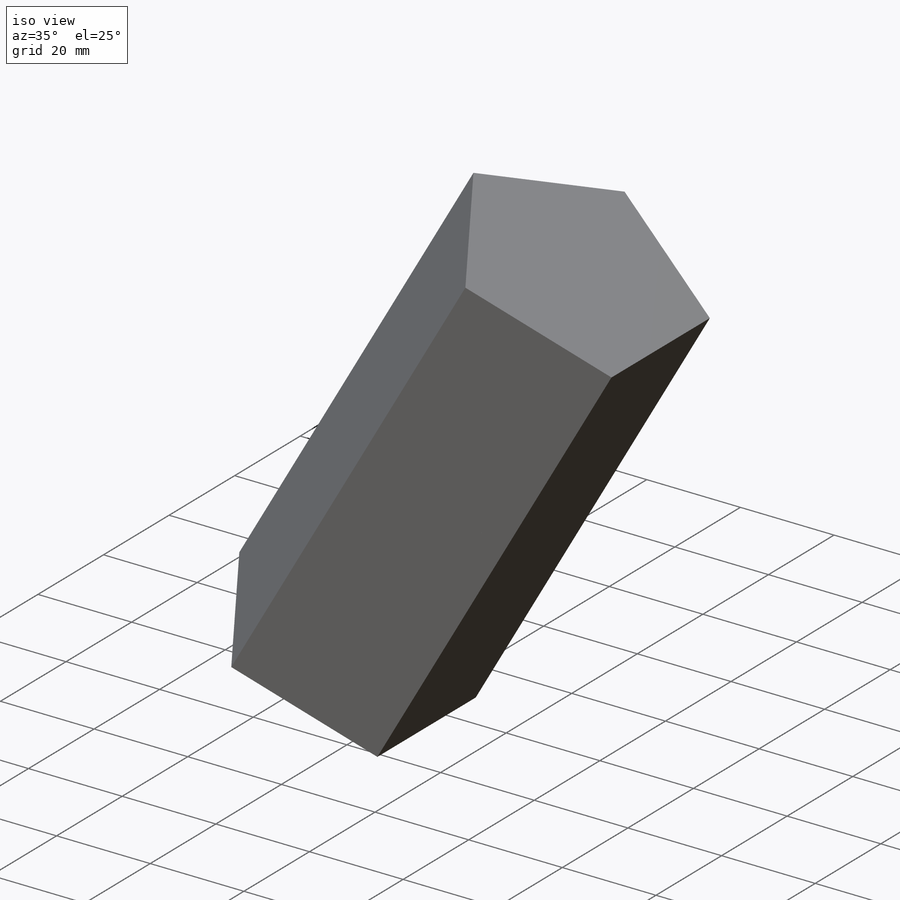
[diagram: iso view]
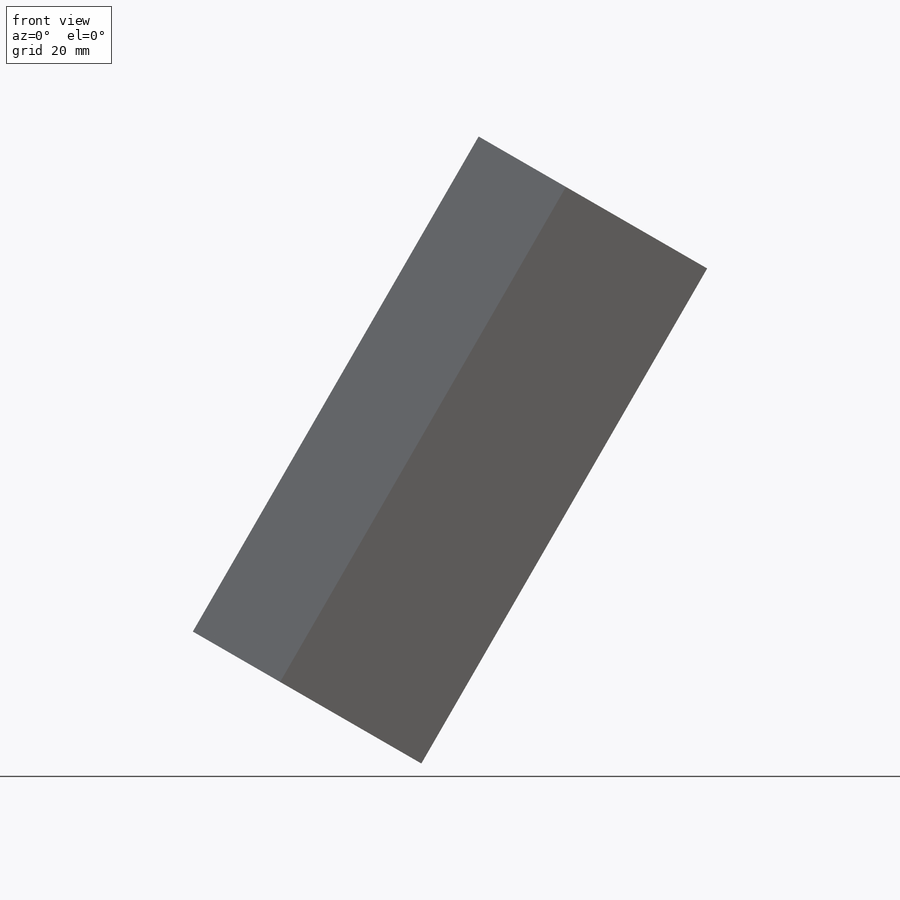
[diagram: front view]
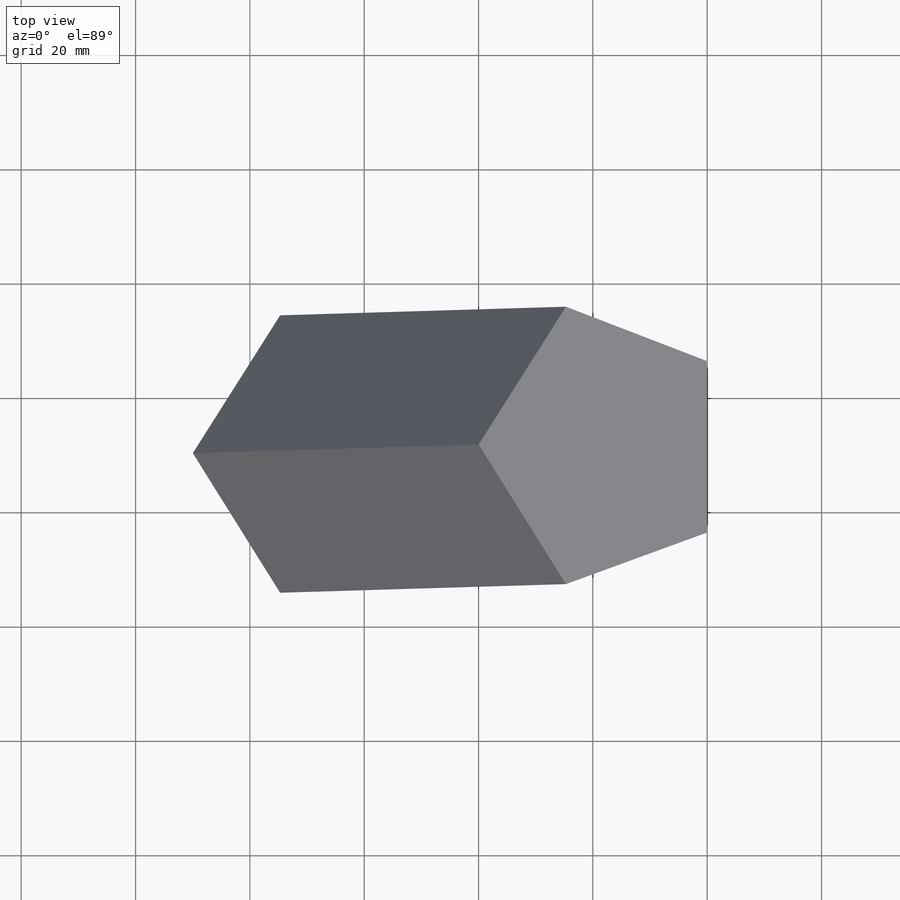
[diagram: top view]
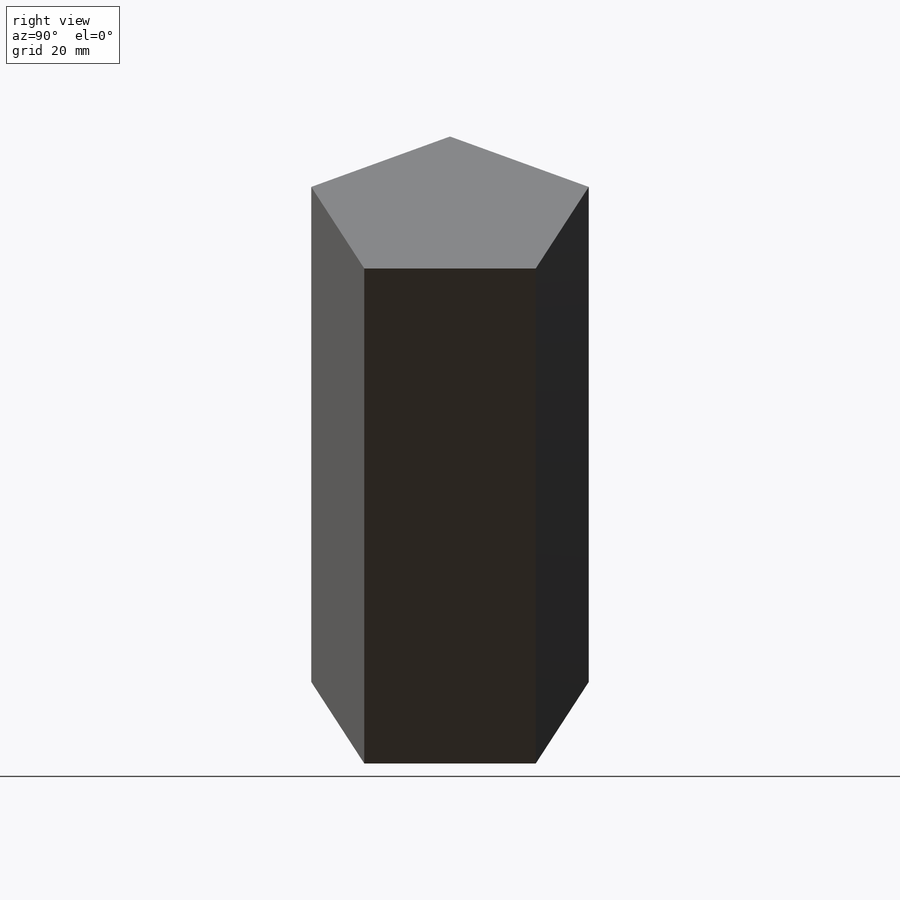
[diagram: right view]
SOLIDWORKS PART (.sldprt)
format: sldprt  version: not decoded by parser v0  size: 179,712 bytes
history: native  units: mm
features: plane x9, sketch x6, extrude x2, material x1 (+10 scaffold rows collapsed)
feature tree (28):
  scaffold x10  (default folders/planes/origin — collapsed)
  material  "Material <not specified>"
  plane  "VP"
  plane  "HP"
  sketch  "Sketch5"  dims[D1=130.0mm]
  plane  "60 deg"
  sketch  "Sketch6"  dims[D1=30.0mm D2=35.0mm]
  extrude  "Boss-Extrude2"  Depth=100mm
  sketch  "Sketch2"
  sketch  "Sketch3"  dims[c1.D1=~94.077578mm c2.D1=45.0deg]
  sketch  "Sketch4"  dims[c1.D1=~31.711769mm c2.D1=30.0deg]
  plane  "VTH"
  sketch  "Sketch7"  dims[D1=0.0mm]
  extrude  "Boss-Extrude3"  Depth=100mm
  plane  "35mm"  Offset=35mm
  plane  "Near edge"
  plane  "50mm"  Offset=50mm
  plane  "65mm"  Offset=65mm
  plane  "Far edge"
decode coverage: 7 of 8 modeling features carry decoded parameters
note: ~ marks probable driven/reference dimensions
note: suppression state not decoded; provenance and decode notes live in map.json
